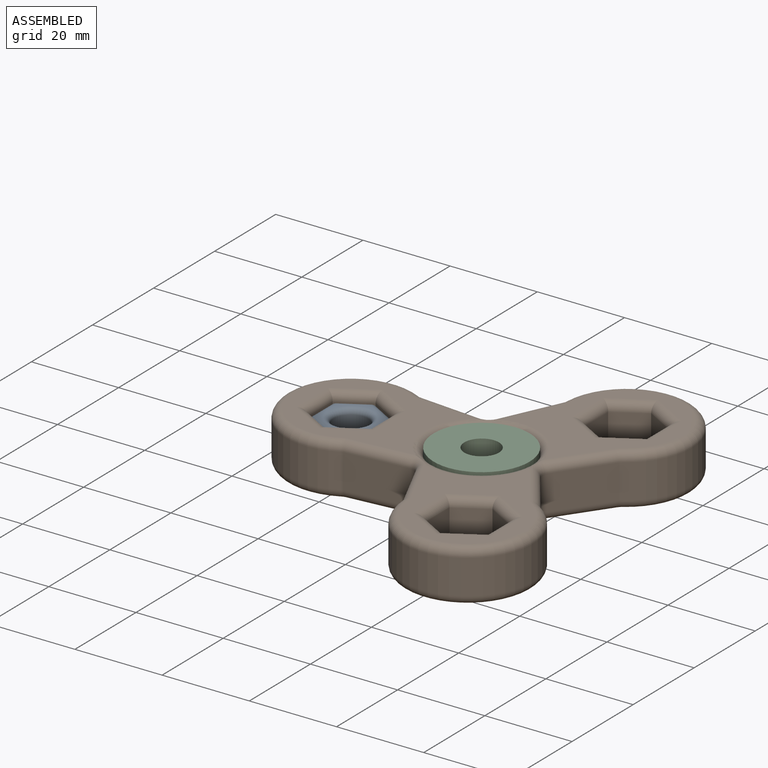
[diagram: assembled view]
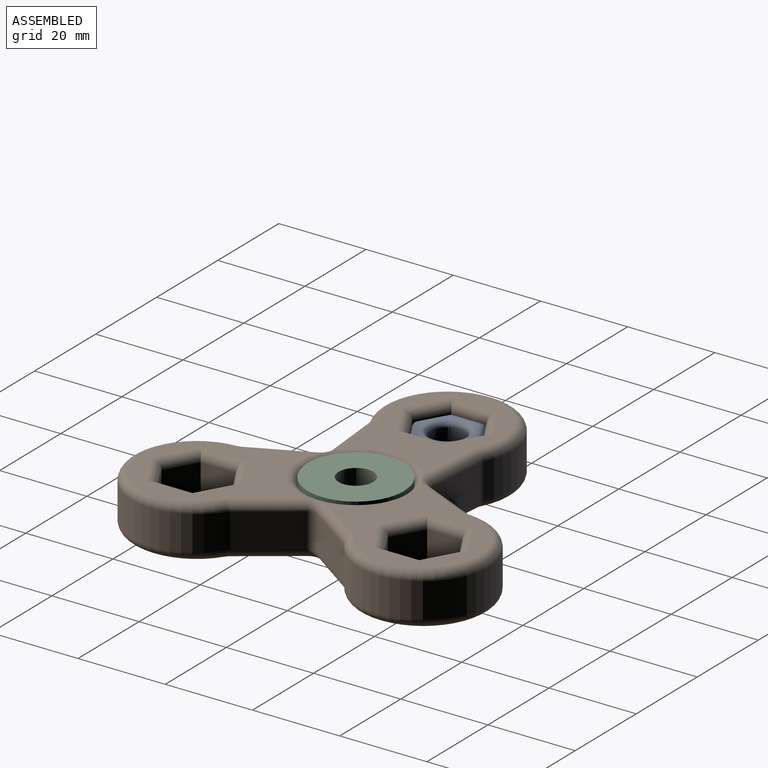
[diagram: assembled view, second angle]
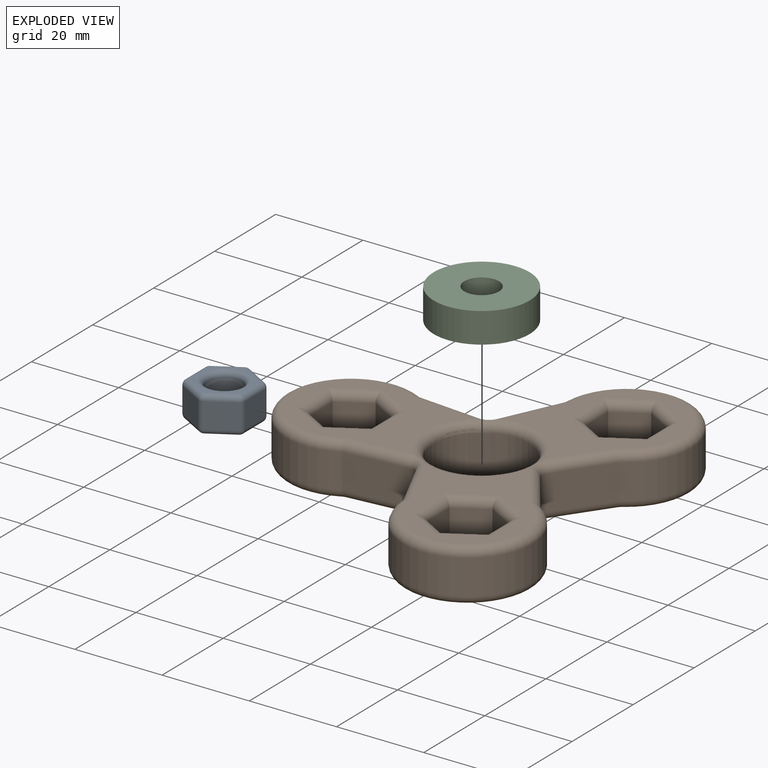
[diagram: exploded view]
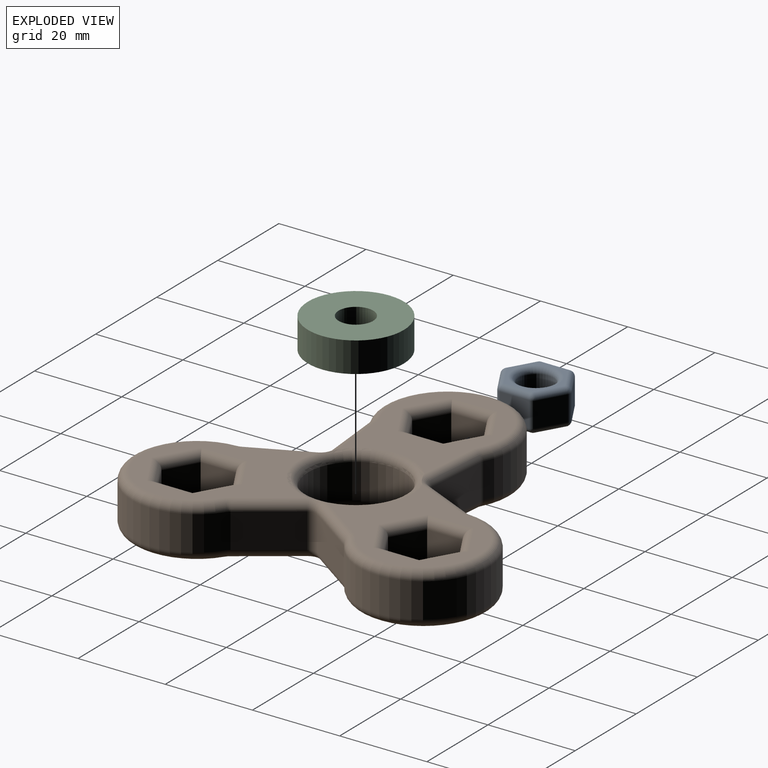
[diagram: exploded view, second angle]
ASSEMBLY  parts=3 mates=3
PART A: 41 faces, bbox 14x15.8x8.4 mm
  f0: plane 6.64x5.84mm, normal (1,0,0), area 38.8mm2, adj f27,f32,f35,f38
  f1: plane 5.84x5.75mm, normal (0.5,0.87,0), area 38.8mm2, adj f24,f33,f34,f38
  f2: plane 5.84x5.75mm, normal (-0.5,0.87,0), area 38.8mm2, adj f14,f23,f24,f25
  f3: plane 6.64x5.84mm, normal (-1,0,0), area 38.8mm2, adj f9,f13,f14,f15
  f4: plane 5.84x5.75mm, normal (-0.5,-0.87,0), area 38.8mm2, adj f9,f12,f16,f17
  f5: plane 5.84x5.75mm, normal (0.5,-0.87,0), area 38.8mm2, adj f17,f22,f26,f27
  f6: cylinder r=3.99mm len=7.98mm, axis (0,0,-1), area 146.4mm2, adj f39,f40
  f7: plane 13.29x11.51mm, normal (0,0,1), area 27.8mm2, adj f12,f13,f22,f23,f32,f33,f40
  f8: plane 13.29x11.51mm, normal (0,0,-1), area 27.8mm2, adj f15,f16,f25,f26,f34,f35,f39
  f9: cylinder r=1.27mm len=5.84mm, axis (0,0,-1), area 7.8mm2, adj f3,f4,f10,f11
  f10: sphere r=1.27mm, area 1.7mm2, adj f9,f12,f13
  f11: sphere r=1.27mm, area 1.7mm2, adj f9,f15,f16
  f12: cylinder r=1.27mm len=6.39mm, axis (-0.87,0.5,0), area 13.3mm2, adj f4,f7,f10,f18
  f13: cylinder r=1.27mm len=6.64mm, axis (0,1,0), area 13.3mm2, adj f3,f7,f10,f19
  f14: cylinder r=1.27mm len=5.84mm, axis (0,0,-1), area 7.8mm2, adj f2,f3,f19,f20
  f15: cylinder r=1.27mm len=6.64mm, axis (0,-1,0), area 13.3mm2, adj f3,f8,f11,f20
  f16: cylinder r=1.27mm len=6.39mm, axis (0.87,-0.5,0), area 13.3mm2, adj f4,f8,f11,f21
  f17: cylinder r=1.27mm len=5.84mm, axis (0,0,-1), area 7.8mm2, adj f4,f5,f18,f21
  f18: sphere r=1.27mm, area 1.7mm2, adj f12,f17,f22
  f19: sphere r=1.27mm, area 1.7mm2, adj f13,f14,f23
  f20: sphere r=1.27mm, area 1.7mm2, adj f14,f15,f25
  f21: sphere r=1.27mm, area 1.7mm2, adj f16,f17,f26
  f22: cylinder r=1.27mm len=6.39mm, axis (-0.87,-0.5,0), area 13.3mm2, adj f5,f7,f18,f28
  f23: cylinder r=1.27mm len=6.39mm, axis (0.87,0.5,0), area 13.3mm2, adj f2,f7,f19,f29
  f24: cylinder r=1.27mm len=5.84mm, axis (0,0,-1), area 7.8mm2, adj f1,f2,f29,f30
  f25: cylinder r=1.27mm len=6.39mm, axis (-0.87,-0.5,0), area 13.3mm2, adj f2,f8,f20,f30
  f26: cylinder r=1.27mm len=6.39mm, axis (0.87,0.5,0), area 13.3mm2, adj f5,f8,f21,f31
  f27: cylinder r=1.27mm len=5.84mm, axis (0,0,-1), area 7.8mm2, adj f0,f5,f28,f31
  f28: sphere r=1.27mm, area 1.7mm2, adj f22,f27,f32
  f29: sphere r=1.27mm, area 1.7mm2, adj f23,f24,f33
  f30: sphere r=1.27mm, area 1.7mm2, adj f24,f25,f34
  f31: sphere r=1.27mm, area 1.7mm2, adj f26,f27,f35
  f32: cylinder r=1.27mm len=6.64mm, axis (0,-1,0), area 13.3mm2, adj f0,f7,f28,f36
  f33: cylinder r=1.27mm len=6.39mm, axis (0.87,-0.5,0), area 13.3mm2, adj f1,f7,f29,f36
  f34: cylinder r=1.27mm len=6.39mm, axis (-0.87,0.5,0), area 13.3mm2, adj f1,f8,f30,f37
  f35: cylinder r=1.27mm len=6.64mm, axis (0,1,0), area 13.3mm2, adj f0,f8,f31,f37
  f36: sphere r=1.27mm, area 1.7mm2, adj f32,f33,f38
  f37: sphere r=1.27mm, area 1.7mm2, adj f34,f35,f38
  f38: cylinder r=1.27mm len=5.84mm, axis (0,0,-1), area 7.8mm2, adj f0,f1,f36,f37
  f39: torus R=5.26mm, axis (0,0,1), area 55.8mm2, adj f6,f8
  f40: torus R=5.26mm, axis (0,0,1), area 55.8mm2, adj f6,f7
PART B: 117 faces, bbox 84.3x77.3x12 mm
  f0: plane 36.38x32.13mm, normal (0,0,1), area 393.4mm2, adj f34,f43,f44,f55,f56,f69,f105,f106
  f1: plane 36.39x32.12mm, normal (0,0,1), area 393.4mm2, adj f37,f41,f48,f52,f53,f69,f111,f112
  f2: plane 36.38x32.13mm, normal (0,0,-1), area 393.4mm2, adj f36,f46,f47,f62,f63,f72,f81,f82
  f3: plane 36.39x32.12mm, normal (0,0,-1), area 393.4mm2, adj f39,f50,f51,f65,f66,f72,f87,f88
  f4: plane 8.11x8mm, normal (0,1,0), area 64.9mm2, adj f5,f31,f83,f107
  f5: plane 8x7.02mm, normal (0.87,0.5,0), area 64.9mm2, adj f4,f6,f81,f105
  f6: plane 8x7.02mm, normal (0.87,-0.5,0), area 64.9mm2, adj f5,f7,f82,f106
  f7: plane 8.11x8mm, normal (0,-1,0), area 64.9mm2, adj f6,f8,f84,f108
  f8: plane 8x7.02mm, normal (-0.87,-0.5,0), area 64.9mm2, adj f7,f31,f86,f110
  f9: plane 8x7.02mm, normal (-0.87,-0.5,0), area 64.9mm2, adj f10,f27,f91,f115
  f10: plane 8x7.02mm, normal (-0.87,0.5,0), area 64.9mm2, adj f9,f11,f89,f113
  f11: plane 8.11x8mm, normal (0,1,0), area 64.9mm2, adj f10,f12,f87,f111
  f12: plane 8x7.02mm, normal (0.87,0.5,0), area 64.9mm2, adj f11,f13,f88,f112
  f13: plane 8x7.02mm, normal (0.87,-0.5,0), area 64.9mm2, adj f12,f27,f90,f114
  f14: plane 8x7.02mm, normal (-0.87,0.5,0), area 64.9mm2, adj f15,f29,f97,f104
  f15: plane 8.11x8mm, normal (0,1,0), area 64.9mm2, adj f14,f16,f95,f103
  f16: plane 8x7.02mm, normal (0.87,0.5,0), area 64.9mm2, adj f15,f17,f93,f101
  f17: plane 8x7.02mm, normal (0.87,-0.5,0), area 64.9mm2, adj f16,f18,f94,f99
  f18: plane 8.11x8mm, normal (0,-1,0), area 64.9mm2, adj f17,f29,f96,f100
  f19: cylinder r=14.92mm len=29.84mm, axis (0,0,-1), area 488.3mm2, adj f59,f75,f76,f80
  f20: plane 14.39x8mm, normal (-1,-0.09,0), area 115.6mm2, adj f45,f58,f59,f60
  f21: plane 13x8mm, normal (-0.42,0.91,0), area 114.7mm2, adj f35,f45,f56,f62
  f22: cylinder r=14.92mm len=29.83mm, axis (0,0,-1), area 488.3mm2, adj f34,f35,f36,f42
  f23: plane 11.79x8.35mm, normal (0.58,-0.82,0), area 115.6mm2, adj f42,f49,f55,f63
  f24: plane 11.73x8.23mm, normal (-0.57,-0.82,0), area 114.7mm2, adj f38,f49,f53,f65
  f25: cylinder r=14.92mm len=29.82mm, axis (0,0,-1), area 488.3mm2, adj f37,f38,f39,f40
  f26: plane 13.13x8mm, normal (0.42,0.91,0), area 115.6mm2, adj f40,f52,f66,f67
  f27: plane 8.11x8mm, normal (0,-1,0), area 64.9mm2, adj f9,f13,f92,f116
  f28: cylinder r=11mm len=22mm, axis (0,0,-1), area 552.8mm2, adj f69,f72
  f29: plane 8x7.02mm, normal (-0.87,-0.5,0), area 64.9mm2, adj f14,f18,f98,f102
  f30: plane 14.28x8mm, normal (1,-0.09,0), area 114.7mm2, adj f67,f74,f77,f80
  f31: plane 8x7.02mm, normal (-0.87,0.5,0), area 64.9mm2, adj f4,f8,f85,f109
  f32: plane 34.37x25.84mm, normal (0,0,1), area 393.4mm2, adj f58,f69,f70,f74,f75,f78,f99,f100
  f33: plane 34.37x25.84mm, normal (0,0,-1), area 393.4mm2, adj f60,f71,f72,f76,f77,f79,f93,f94
  f34: torus R=12.92mm, axis (0,0,1), area 182.4mm2, adj f0,f22,f43,f44
  f35: cylinder r=2mm len=8mm, axis (0,0,-1), area 6.2mm2, adj f21,f22,f44,f46
  f36: torus R=12.92mm, axis (0,0,1), area 182.4mm2, adj f2,f22,f46,f47
  f37: torus R=12.92mm, axis (0,0,1), area 182.4mm2, adj f1,f25,f41,f48
  f38: cylinder r=2mm len=8mm, axis (0,0,-1), area 6.2mm2, adj f24,f25,f48,f50
  f39: torus R=12.92mm, axis (0,0,1), area 182.4mm2, adj f3,f25,f50,f51
  f40: cylinder r=2mm len=8mm, axis (0,0,-1), area 6mm2, adj f25,f26,f41,f51
  f41: torus R=4mm, axis (0,0,1), area 3.2mm2, adj f1,f37,f40,f52
  f42: cylinder r=2mm len=8mm, axis (0,0,-1), area 6mm2, adj f22,f23,f43,f47
  f43: torus R=4mm, axis (0,0,1), area 3.2mm2, adj f0,f34,f42,f55
  f44: torus R=4mm, axis (0,0,1), area 3.3mm2, adj f0,f34,f35,f56
  f45: cylinder r=2mm len=8mm, axis (0,0,1), area 19.7mm2, adj f20,f21,f57,f61
  f46: torus R=4mm, axis (0,0,1), area 3.3mm2, adj f2,f35,f36,f62
  f47: torus R=4mm, axis (0,0,1), area 3.2mm2, adj f2,f36,f42,f63
  f48: torus R=4mm, axis (0,0,1), area 3.3mm2, adj f1,f37,f38,f53
  f49: cylinder r=2mm len=8mm, axis (0,0,1), area 19.7mm2, adj f23,f24,f54,f64
  f50: torus R=4mm, axis (0,0,1), area 3.3mm2, adj f3,f38,f39,f65
  f51: torus R=4mm, axis (0,0,1), area 3.2mm2, adj f3,f39,f40,f66
  f52: cylinder r=2mm len=13.96mm, axis (0.91,-0.42,0), area 45.4mm2, adj f1,f26,f41,f68,f69
  f53: cylinder r=2mm len=12.88mm, axis (-0.82,0.57,0), area 45mm2, adj f1,f24,f48,f54,f69
  f54: torus R=4mm, axis (0,0,1), area 8.6mm2, adj f49,f53,f55,f69
  f55: cylinder r=2mm len=12.95mm, axis (-0.82,-0.58,0), area 45.4mm2, adj f0,f23,f43,f54,f69
  f56: cylinder r=2mm len=13.84mm, axis (0.91,0.42,0), area 45mm2, adj f0,f21,f44,f57,f69
  f57: torus R=4mm, axis (0,0,1), area 8.6mm2, adj f45,f56,f58,f69
  f58: cylinder r=2mm len=14.57mm, axis (-0.09,1,0), area 45.4mm2, adj f20,f32,f57,f69,f70
  f59: cylinder r=2mm len=8mm, axis (0,0,-1), area 6mm2, adj f19,f20,f70,f71
  f60: cylinder r=2mm len=14.57mm, axis (0.09,-1,0), area 45.4mm2, adj f20,f33,f61,f71,f72
  f61: torus R=4mm, axis (0,0,1), area 8.6mm2, adj f45,f60,f62,f72
  f62: cylinder r=2mm len=13.84mm, axis (-0.91,-0.42,0), area 45mm2, adj f2,f21,f46,f61,f72
  f63: cylinder r=2mm len=12.95mm, axis (0.82,0.58,0), area 45.4mm2, adj f2,f23,f47,f64,f72
  f64: torus R=4mm, axis (0,0,1), area 8.6mm2, adj f49,f63,f65,f72
  f65: cylinder r=2mm len=12.88mm, axis (0.82,-0.57,0), area 45mm2, adj f3,f24,f50,f64,f72
  f66: cylinder r=2mm len=13.96mm, axis (-0.91,0.42,0), area 45.4mm2, adj f3,f26,f51,f72,f73
  f67: cylinder r=2mm len=8mm, axis (0,0,1), area 19.7mm2, adj f26,f30,f68,f73
  f68: torus R=4mm, axis (0,0,1), area 8.6mm2, adj f52,f67,f69,f74
  f69: torus R=13mm, axis (0,0,1), area 225.8mm2, adj f0,f1,f28,f32,f52,f53,f54,f55
  f70: torus R=4mm, axis (0,0,1), area 3.2mm2, adj f32,f58,f59,f75
  f71: torus R=4mm, axis (0,0,1), area 3.2mm2, adj f33,f59,f60,f76
  f72: torus R=13mm, axis (0,0,1), area 225.8mm2, adj f2,f3,f28,f33,f60,f61,f62,f63
  f73: torus R=4mm, axis (0,0,1), area 8.6mm2, adj f66,f67,f72,f77
  f74: cylinder r=2mm len=14.45mm, axis (-0.09,-1,0), area 45mm2, adj f30,f32,f68,f69,f78
  f75: torus R=12.92mm, axis (0,0,1), area 182.4mm2, adj f19,f32,f70,f78
  f76: torus R=12.92mm, axis (0,0,1), area 182.4mm2, adj f19,f33,f71,f79
  f77: cylinder r=2mm len=14.45mm, axis (0.09,1,0), area 45mm2, adj f30,f33,f72,f73,f79
  f78: torus R=4mm, axis (0,0,1), area 3.3mm2, adj f32,f74,f75,f80
  f79: torus R=4mm, axis (0,0,1), area 3.3mm2, adj f33,f76,f77,f80
  f80: cylinder r=2mm len=8mm, axis (0,0,-1), area 6.2mm2, adj f19,f30,f78,f79
  f81: cylinder r=2mm len=10.02mm, axis (-0.5,0.87,0), area 28.1mm2, adj f2,f5,f82,f83
  f82: cylinder r=2mm len=10.02mm, axis (0.5,0.87,0), area 28.1mm2, adj f2,f6,f81,f84
  f83: cylinder r=2mm len=10.42mm, axis (-1,0,0), area 28.1mm2, adj f2,f4,f81,f85
  f84: cylinder r=2mm len=10.42mm, axis (1,0,0), area 28.1mm2, adj f2,f7,f82,f86
  f85: cylinder r=2mm len=10.02mm, axis (-0.5,-0.87,0), area 28.1mm2, adj f2,f31,f83,f86
  f86: cylinder r=2mm len=10.02mm, axis (0.5,-0.87,0), area 28.1mm2, adj f2,f8,f84,f85
  f87: cylinder r=2mm len=10.42mm, axis (-1,0,0), area 28.1mm2, adj f3,f11,f88,f89
  f88: cylinder r=2mm len=10.02mm, axis (-0.5,0.87,0), area 28.1mm2, adj f3,f12,f87,f90
  f89: cylinder r=2mm len=10.02mm, axis (-0.5,-0.87,0), area 28.1mm2, adj f3,f10,f87,f91
  f90: cylinder r=2mm len=10.02mm, axis (0.5,0.87,0), area 28.1mm2, adj f3,f13,f88,f92
  f91: cylinder r=2mm len=10.02mm, axis (0.5,-0.87,0), area 28.1mm2, adj f3,f9,f89,f92
  f92: cylinder r=2mm len=10.42mm, axis (1,0,0), area 28.1mm2, adj f3,f27,f90,f91
  f93: cylinder r=2mm len=10.02mm, axis (-0.5,0.87,0), area 28.1mm2, adj f16,f33,f94,f95
  f94: cylinder r=2mm len=10.02mm, axis (0.5,0.87,0), area 28.1mm2, adj f17,f33,f93,f96
  f95: cylinder r=2mm len=10.42mm, axis (-1,0,0), area 28.1mm2, adj f15,f33,f93,f97
  f96: cylinder r=2mm len=10.42mm, axis (1,0,0), area 28.1mm2, adj f18,f33,f94,f98
  f97: cylinder r=2mm len=10.02mm, axis (-0.5,-0.87,0), area 28.1mm2, adj f14,f33,f95,f98
  f98: cylinder r=2mm len=10.02mm, axis (0.5,-0.87,0), area 28.1mm2, adj f29,f33,f96,f97
  f99: cylinder r=2mm len=10.02mm, axis (-0.5,-0.87,0), area 28.1mm2, adj f17,f32,f100,f101
  f100: cylinder r=2mm len=10.42mm, axis (-1,0,0), area 28.1mm2, adj f18,f32,f99,f102
  f101: cylinder r=2mm len=10.02mm, axis (0.5,-0.87,0), area 28.1mm2, adj f16,f32,f99,f103
  f102: cylinder r=2mm len=10.02mm, axis (-0.5,0.87,0), area 28.1mm2, adj f29,f32,f100,f104
  f103: cylinder r=2mm len=10.42mm, axis (1,0,0), area 28.1mm2, adj f15,f32,f101,f104
  f104: cylinder r=2mm len=10.02mm, axis (0.5,0.87,0), area 28.1mm2, adj f14,f32,f102,f103
  f105: cylinder r=2mm len=10.02mm, axis (0.5,-0.87,0), area 28.1mm2, adj f0,f5,f106,f107
  f106: cylinder r=2mm len=10.02mm, axis (-0.5,-0.87,0), area 28.1mm2, adj f0,f6,f105,f108
  f107: cylinder r=2mm len=10.42mm, axis (1,0,0), area 28.1mm2, adj f0,f4,f105,f109
  f108: cylinder r=2mm len=10.42mm, axis (-1,0,0), area 28.1mm2, adj f0,f7,f106,f110
  f109: cylinder r=2mm len=10.02mm, axis (0.5,0.87,0), area 28.1mm2, adj f0,f31,f107,f110
  f110: cylinder r=2mm len=10.02mm, axis (-0.5,0.87,0), area 28.1mm2, adj f0,f8,f108,f109
  f111: cylinder r=2mm len=10.42mm, axis (1,0,0), area 28.1mm2, adj f1,f11,f112,f113
  f112: cylinder r=2mm len=10.02mm, axis (0.5,-0.87,0), area 28.1mm2, adj f1,f12,f111,f114
  f113: cylinder r=2mm len=10.02mm, axis (0.5,0.87,0), area 28.1mm2, adj f1,f10,f111,f115
  f114: cylinder r=2mm len=10.02mm, axis (-0.5,-0.87,0), area 28.1mm2, adj f1,f13,f112,f116
  f115: cylinder r=2mm len=10.02mm, axis (-0.5,0.87,0), area 28.1mm2, adj f1,f9,f113,f116
  f116: cylinder r=2mm len=10.42mm, axis (-1,0,0), area 28.1mm2, adj f1,f27,f114,f115
PART C: 4 faces, bbox 22x22x7 mm
  f0: cylinder r=3.98mm len=7.95mm, axis (0,0,-1), area 173.8mm2, adj f2,f3
  f1: cylinder r=11mm len=22mm, axis (0,0,-1), area 480.9mm2, adj f2,f3
  f2: plane 22x22mm, normal (0,0,1), area 330.4mm2, adj f0,f1
  f3: plane 22x22mm, normal (0,0,-1), area 330.4mm2, adj f0,f1
PLACE A t=(-42.04,-6.71,22.16)mm
PLACE B rot(axis=(0,0,-1),30deg) t=(-12.04,-6.71,20.35)mm
PLACE C t=(-12.04,-6.71,25.39)mm
MATE cylindrical B.f28 <-> C.f1  axis (0,0,-1) through (-12.04,-6.71,30.35)mm
MATE planar C.f1 <-> B.f1  axis (0,0,1) through (-12.04,-6.71,32.35)mm
MATE planar B.f4 <-> A.f4  axis (0.5,0.87,0) through (-45.55,-12.79,26.35)mm
